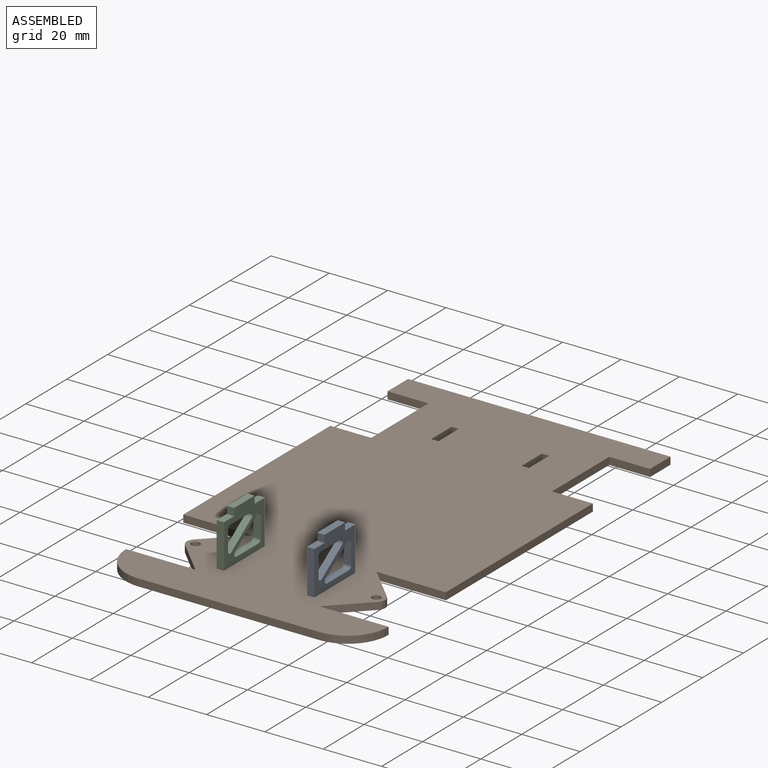
[diagram: assembled view]
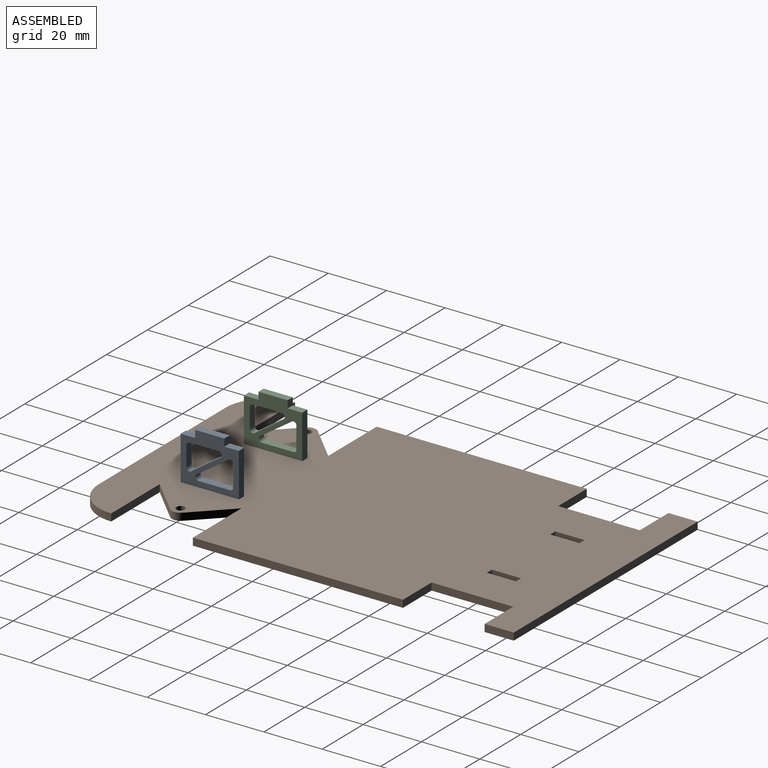
[diagram: assembled view, second angle]
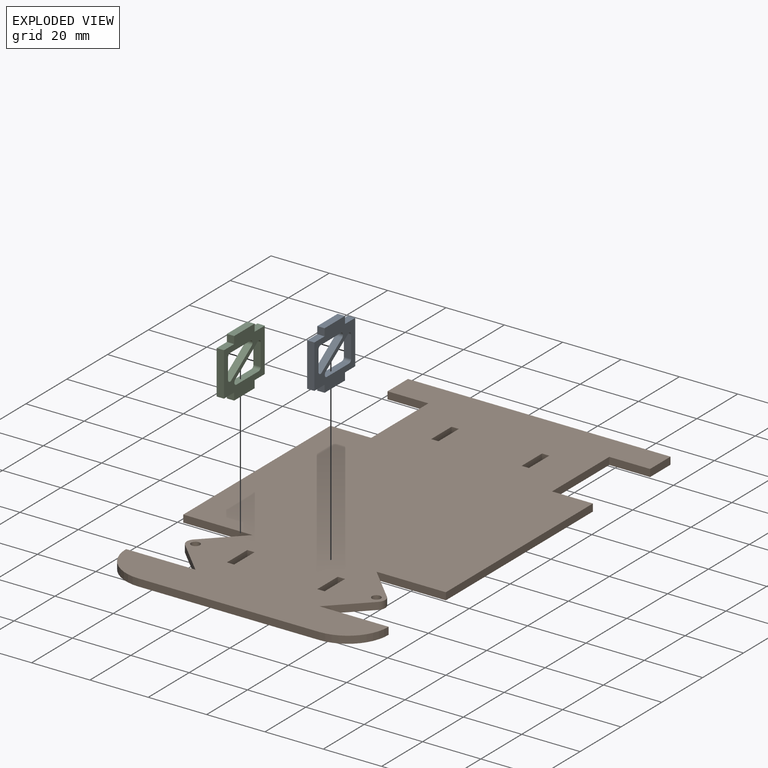
[diagram: exploded view]
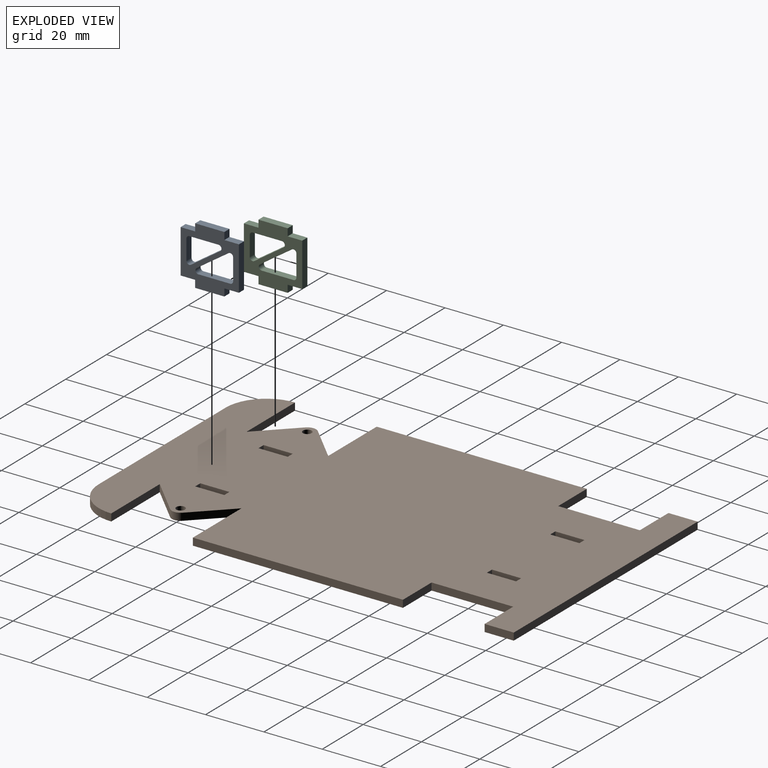
[diagram: exploded view, second angle]
ASSEMBLY  parts=3 mates=2
PART A: 26 faces, bbox 2.5x20x20 mm
  f0: cylinder r=1mm len=2.5mm, axis (1,0,0), area 5.4mm2, adj f1,f23,f24,f25
  f1: plane 10.9x7.49mm, normal (0,0.57,-0.82), area 33.1mm2, adj f0,f2,f24,f25
  f2: cylinder r=1mm len=2.5mm, axis (1,0,0), area 6.3mm2, adj f1,f3,f24,f25
  f3: plane 10.9x2.5mm, normal (0,0,1), area 27.2mm2, adj f2,f4,f24,f25
  f4: cylinder r=1mm len=2.5mm, axis (1,0,0), area 3.9mm2, adj f3,f23,f24,f25
  f5: cylinder r=1mm len=2.5mm, axis (1,0,0), area 5.4mm2, adj f6,f21,f24,f25
  f6: plane 10.02x6.89mm, normal (0,-0.57,0.82), area 30.4mm2, adj f5,f7,f24,f25
  f7: cylinder r=1mm len=2.5mm, axis (1,0,0), area 6.3mm2, adj f6,f8,f24,f25
  f8: plane 10.02x2.5mm, normal (0,0,-1), area 25mm2, adj f7,f9,f24,f25
  f9: cylinder r=1mm len=2.5mm, axis (1,0,0), area 3.9mm2, adj f8,f21,f24,f25
  f10: plane 2.5x2.5mm, normal (0,1,0), area 6.3mm2, adj f11,f22,f24,f25
  f11: plane 10x2.5mm, normal (0,0,-1), area 25mm2, adj f10,f12,f24,f25
  f12: plane 2.5x2.5mm, normal (0,-1,0), area 6.3mm2, adj f11,f13,f24,f25
  f13: plane 5x2.5mm, normal (0,0,-1), area 12.5mm2, adj f12,f14,f24,f25
  f14: plane 15x2.5mm, normal (0,-1,0), area 37.5mm2, adj f13,f15,f24,f25
  f15: plane 5x2.5mm, normal (0,0,1), area 12.5mm2, adj f14,f16,f24,f25
  f16: plane 2.5x2.5mm, normal (0,-1,0), area 6.2mm2, adj f15,f17,f24,f25
  f17: plane 10x2.5mm, normal (0,0,1), area 25mm2, adj f16,f18,f24,f25
  f18: plane 2.5x2.5mm, normal (0,1,0), area 6.2mm2, adj f17,f19,f24,f25
  f19: plane 5x2.5mm, normal (0,0,1), area 12.5mm2, adj f18,f20,f24,f25
  f20: plane 15x2.5mm, normal (0,1,0), area 37.5mm2, adj f19,f22,f24,f25
  f21: plane 6.89x2.5mm, normal (0,1,0), area 17.2mm2, adj f5,f9,f24,f25
  f22: plane 5x2.5mm, normal (0,0,-1), area 12.5mm2, adj f10,f20,f24,f25
  f23: plane 7.49x2.5mm, normal (0,-1,0), area 18.7mm2, adj f0,f4,f24,f25
  f24: plane 20x20mm, normal (-1,0,0), area 207.7mm2, adj f0,f1,f2,f3,f4,f5,f6,f7
  f25: plane 20x20mm, normal (1,0,0), area 207.7mm2, adj f0,f1,f2,f3,f4,f5,f6,f7
PART B: 44 faces, bbox 90x152x2.5 mm
  f0: plane 2.5x2.5mm, normal (0,1,0), area 6.3mm2, adj f1,f41,f42,f43
  f1: plane 10x2.5mm, normal (1,0,0), area 25mm2, adj f0,f2,f42,f43
  f2: plane 2.5x2.5mm, normal (0,-1,0), area 6.3mm2, adj f1,f41,f42,f43
  f3: plane 10x2.5mm, normal (1,0,0), area 25mm2, adj f4,f36,f42,f43
  f4: plane 2.5x2.5mm, normal (0,-1,0), area 6.3mm2, adj f3,f5,f42,f43
  f5: plane 10x2.5mm, normal (-1,0,0), area 25mm2, adj f4,f36,f42,f43
  f6: plane 10x2.5mm, normal (-1,0,0), area 25mm2, adj f7,f38,f42,f43
  f7: plane 2.5x2.5mm, normal (0,1,0), area 6.3mm2, adj f6,f8,f42,f43
  f8: plane 10x2.5mm, normal (1,0,0), area 25mm2, adj f7,f38,f42,f43
  f9: plane 28x2.5mm, normal (-1,0,0), area 70mm2, adj f10,f39,f42,f43
  f10: plane 14x2.5mm, normal (0,1,0), area 35mm2, adj f9,f11,f42,f43
  f11: plane 10x2.5mm, normal (-1,0,0), area 25mm2, adj f10,f12,f42,f43
  f12: plane 90x2.5mm, normal (0,-1,0), area 225mm2, adj f11,f13,f42,f43
  f13: plane 10x2.5mm, normal (1,0,0), area 25mm2, adj f12,f14,f42,f43
  f14: plane 14x2.5mm, normal (0,1,0), area 35mm2, adj f13,f15,f42,f43
  f15: plane 28x2.5mm, normal (1,0,0), area 70mm2, adj f14,f16,f42,f43
  f16: plane 14x2.5mm, normal (0,-1,0), area 35mm2, adj f15,f17,f42,f43
  f17: plane 72x2.5mm, normal (1,0,0), area 180mm2, adj f16,f18,f42,f43
  f18: plane 23.76x2.5mm, normal (0,1,0), area 59.4mm2, adj f17,f19,f42,f43
  f19: plane 11.88x11.88mm, normal (0.71,-0.71,0), area 42mm2, adj f18,f20,f42,f43
  f20: cylinder r=3mm len=4.24mm, axis (0,0,-1), area 11.8mm2, adj f19,f21,f42,f43
  f21: plane 11.88x11.88mm, normal (0.71,0.71,0), area 42mm2, adj f20,f22,f42,f43
  f22: plane 23.76x2.5mm, normal (0,-1,0), area 59.4mm2, adj f21,f23,f42,f43
  f23: cylinder r=14mm len=14mm, axis (0,0,-1), area 55mm2, adj f22,f24,f42,f43
  f24: plane 62x2.5mm, normal (0,1,0), area 155mm2, adj f23,f25,f42,f43
  f25: cylinder r=14mm len=14mm, axis (0,0,-1), area 55mm2, adj f24,f26,f42,f43
  f26: plane 23.76x2.5mm, normal (0,-1,0), area 59.4mm2, adj f25,f27,f42,f43
  f27: plane 11.88x11.88mm, normal (-0.71,0.71,0), area 42mm2, adj f26,f28,f42,f43
  f28: cylinder r=3mm len=4.24mm, axis (0,0,-1), area 11.8mm2, adj f27,f29,f42,f43
  f29: plane 11.88x11.88mm, normal (-0.71,-0.71,0), area 42mm2, adj f28,f30,f42,f43
  f30: plane 23.76x2.5mm, normal (0,1,0), area 59.4mm2, adj f29,f31,f42,f43
  f31: plane 72x2.5mm, normal (-1,0,0), area 180mm2, adj f30,f39,f42,f43
  f32: plane 2.5x2.5mm, normal (0,1,0), area 6.3mm2, adj f33,f40,f42,f43
  f33: plane 10x2.5mm, normal (1,0,0), area 25mm2, adj f32,f34,f42,f43
  f34: plane 2.5x2.5mm, normal (0,-1,0), area 6.3mm2, adj f33,f40,f42,f43
  f35: cylinder r=1.5mm len=3mm, axis (0,0,-1), area 23.6mm2, adj f42,f43
  f36: plane 2.5x2.5mm, normal (0,1,0), area 6.3mm2, adj f3,f5,f42,f43
  f37: cylinder r=1.5mm len=3mm, axis (0,0,-1), area 23.6mm2, adj f42,f43
  f38: plane 2.5x2.5mm, normal (0,-1,0), area 6.3mm2, adj f6,f8,f42,f43
  f39: plane 14x2.5mm, normal (0,-1,0), area 35mm2, adj f9,f31,f42,f43
  f40: plane 10x2.5mm, normal (-1,0,0), area 25mm2, adj f32,f34,f42,f43
  f41: plane 10x2.5mm, normal (-1,0,0), area 25mm2, adj f0,f2,f42,f43
  f42: plane 152x90mm, normal (0,0,1), area 11755.5mm2, adj f0,f1,f2,f3,f4,f5,f6,f7
  f43: plane 152x90mm, normal (0,0,-1), area 11755.5mm2, adj f0,f1,f2,f3,f4,f5,f6,f7
PART C: same geometry as A
PLACE A t=(80.78,-88,-1.34)mm
PLACE B rot(axis=(0,0,-1),180deg) t=(49.78,12,-1.34)mm
PLACE C rot(axis=(0,0,1),0deg) t=(49.78,-88,-1.34)mm
MATE fastened C.f11 <-> B.f43  axis (0,0,1) through (33.03,-33,-1.34)mm
MATE fastened A.f11 <-> B.f43  axis (0,0,1) through (64.03,-33,-1.34)mm
